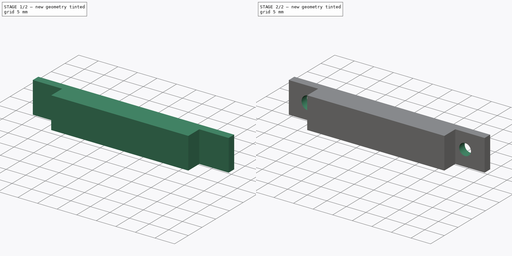
[diagram: build sequence overview — one tinted view per stage of 2, left to right]
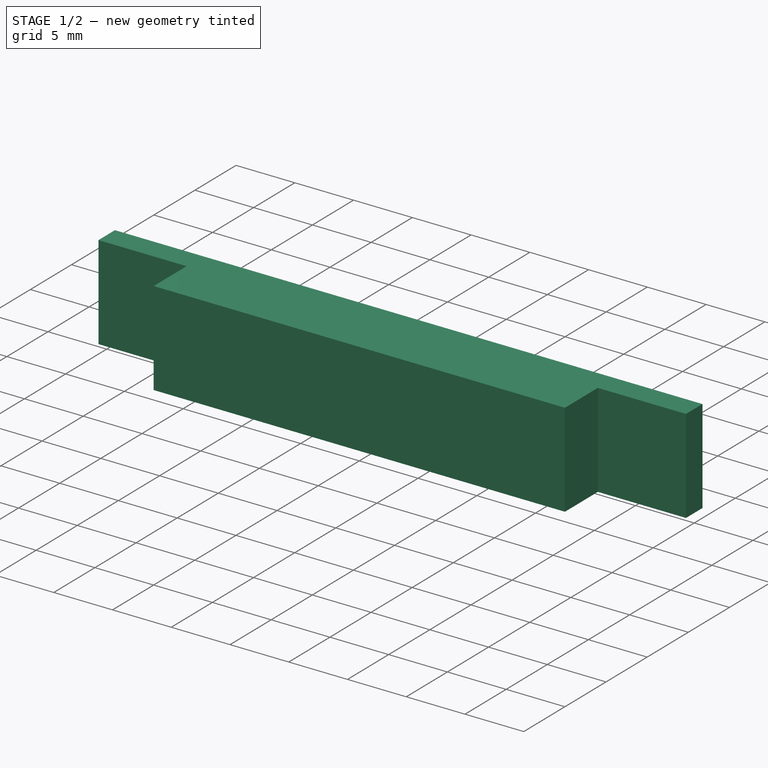
[diagram: stage 1 of 2 — iso view after this stage's code; geometry added in this stage tinted green]
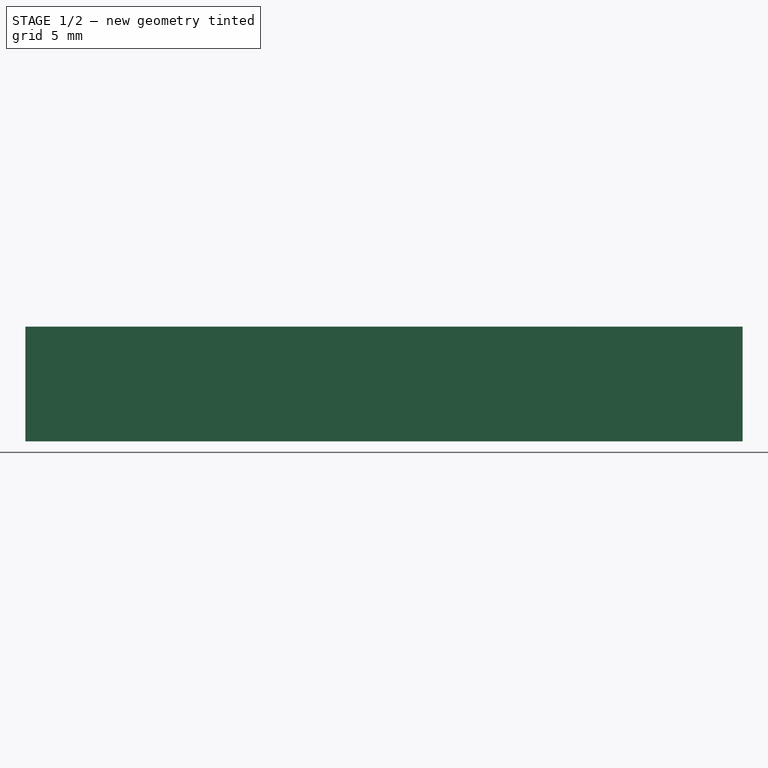
[diagram: stage 1 of 2 — front view after this stage's code; geometry added in this stage tinted green]
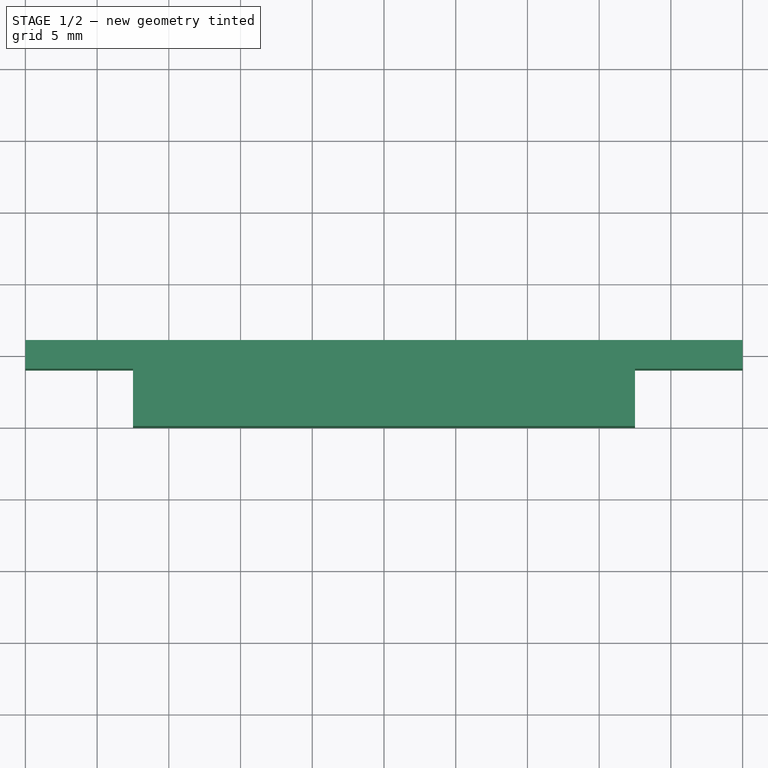
[diagram: stage 1 of 2 — top view after this stage's code; geometry added in this stage tinted green]
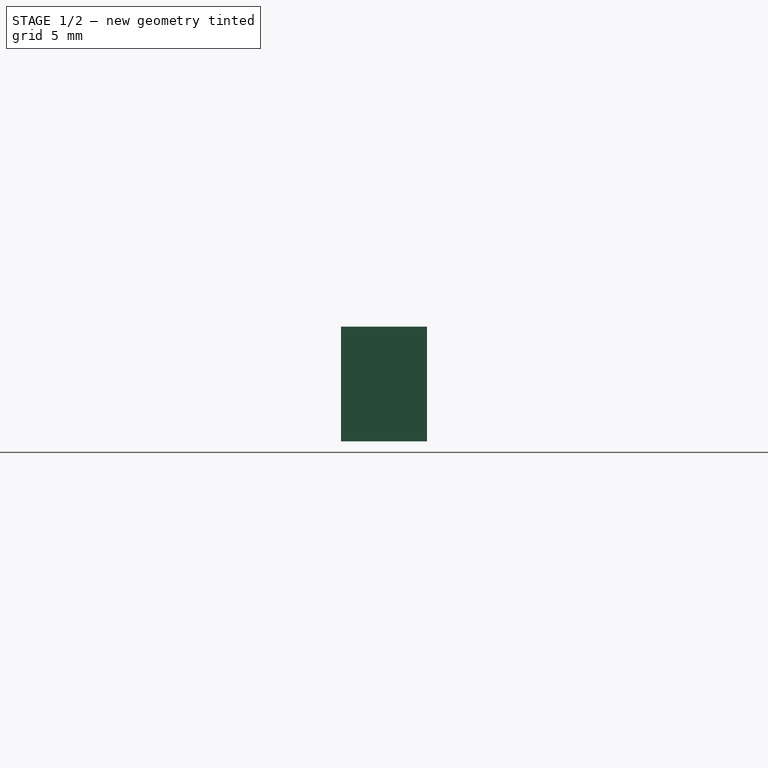
[diagram: stage 1 of 2 — right view after this stage's code; geometry added in this stage tinted green]
FCSTD DOCUMENT  (FreeCAD 2024.319R14555 (Git shallow))
Label: Holddown
License: All rights reserved
objects: Sketcher::SketchObject×2, PartDesign::Pad×1, PartDesign::Pocket×1, PartDesign::Body×1
note: 11 computed .brp shape members not serialized (recipe doc carries the construction recipe); baked Part::Feature solids carry a one-line shape summary decoded from their .brp

FEATURE [Sketcher::SketchObject] Sketch
  ArcFitTolerance = 1e-06
  AttachmentSupport = -> [XY_Plane]
  ExternalBSplineMaxDegree = 5
  ExternalBSplineTolerance = 0.0001
  FullyConstrained = true
  InternalTolerance = 1e-06
  InvalidShape = false
  MakeInternals = false
  MapMode = 5
  Support = -> [XY_Plane]
  TreeRank = 11
  ValidateShape = false
  sketch-geometry (8):
    g0: LineSegment StartX=-25 StartY=6 StartZ=0 EndX=25 EndY=6 EndZ=0
    g1: LineSegment StartX=25 StartY=6 StartZ=0 EndX=25 EndY=4 EndZ=0
    g2: LineSegment StartX=-25 StartY=4 StartZ=0 EndX=-25 EndY=6 EndZ=0
    g3: LineSegment StartX=-25 StartY=4 StartZ=0 EndX=-17.5 EndY=4 EndZ=0
    g4: LineSegment StartX=-17.5 StartY=4 StartZ=0 EndX=-17.5 EndY=0 EndZ=0
    g5: LineSegment StartX=-17.5 StartY=0 StartZ=0 EndX=17.5 EndY=0 EndZ=0
    g6: LineSegment StartX=17.5 StartY=0 StartZ=0 EndX=17.5 EndY=4 EndZ=0
    g7: LineSegment StartX=17.5 StartY=4 StartZ=0 EndX=25 EndY=4 EndZ=0
  constraints (23):
    c: Coincident(g0,g1)
    c: Coincident(g2,g0)
    c: Horizontal(g0)
    c: Vertical(g1)
    c: Vertical(g2)
    c: Coincident(g3,g2)
    c: Coincident(g4,g3)
    c: PointOnObject(g4,g-1)
    c: Vertical(g4)
    c: Coincident(g5,g4)
    c: Coincident(g6,g5)
    c: Vertical(g6)
    c: Coincident(g7,g6)
    c: Coincident(g7,g1)
    c: Horizontal(g7)
    c: DistanceX(g0,g0) = 50
    c: DistanceX(g5,g5) = 35
    c: Horizontal(g3)
    c: Horizontal(g3,g6)
    c: Symmetric(g4,g5,g-2)
    c: DistanceY(g1,g1) = 2
    c: Equal(g3,g7)
    c: DistanceY(g6,g6) = 4
FEATURE [PartDesign::Pad] Pad
  AddSubType = 0
  AlongSketchNormal = false
  AutoTaperInnerAngle = true
  CheckUpToFaceLimits = true
  ClaimChildren = false
  Direction = (0,0,1)
  Fit = 0
  FitJoin = 0
  InnerFit = 0
  InnerFitJoin = 0
  InvalidShape = false
  Length = 8
  Length2 = 10
  Linearize = true
  NewSolid = false
  Profile = -> Sketch
  ReferenceAxis = -> Sketch [N_Axis]
  Suppress = false
  TaperInnerAngle = 0
  TaperInnerAngleRev = 0
  TreeRank = 12
  Type = 0
  ValidateShape = false
  _ProfileBasedVersion = 1
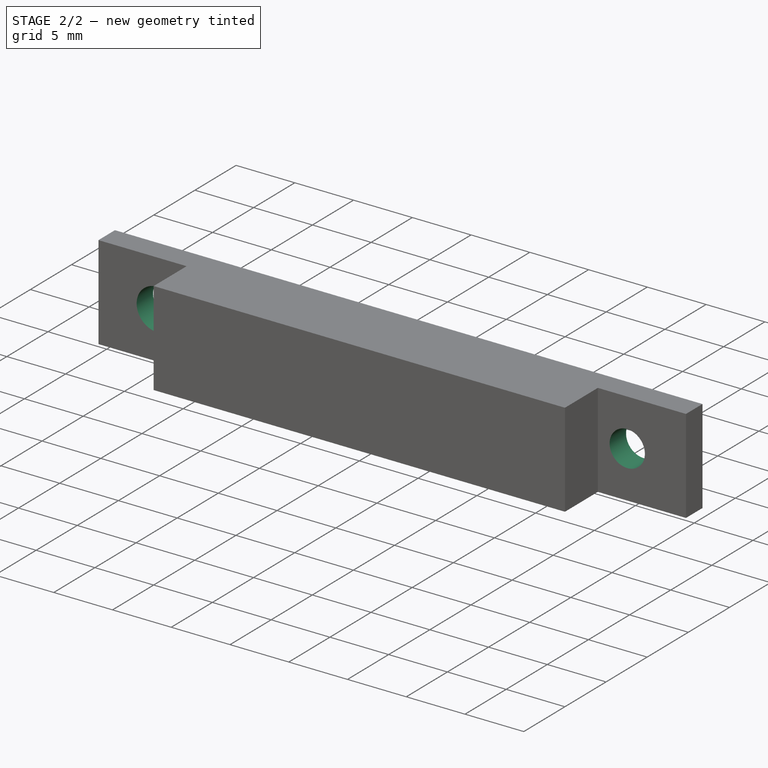
[diagram: stage 2 of 2 — iso view after this stage's code; geometry added in this stage tinted green]
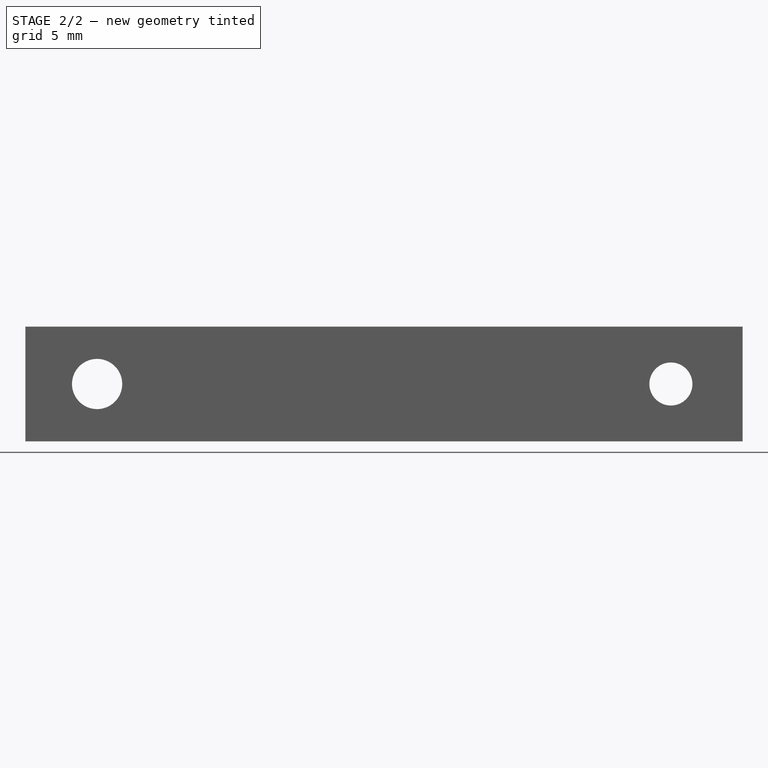
[diagram: stage 2 of 2 — front view after this stage's code; geometry added in this stage tinted green]
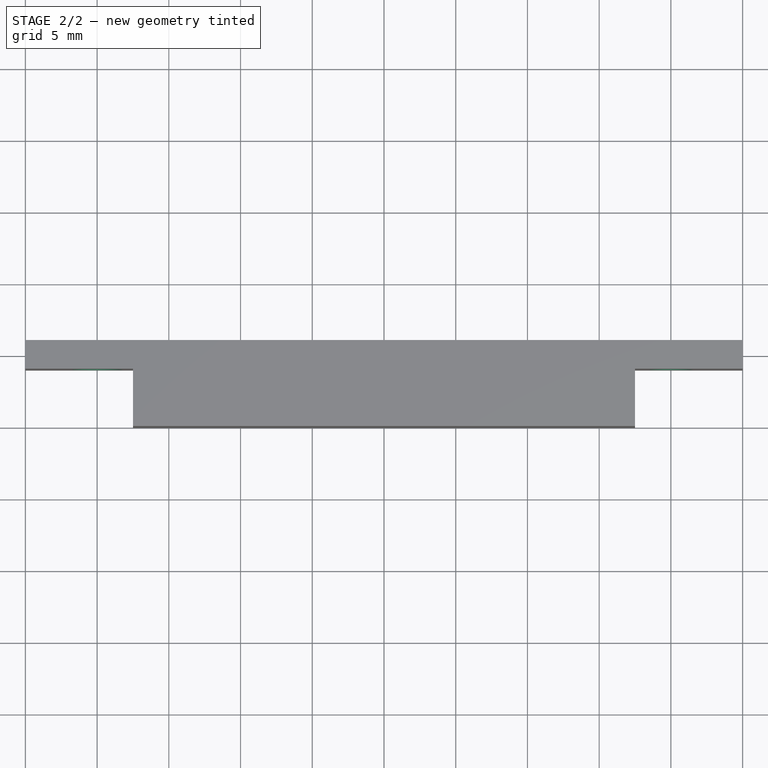
[diagram: stage 2 of 2 — top view after this stage's code; geometry added in this stage tinted green]
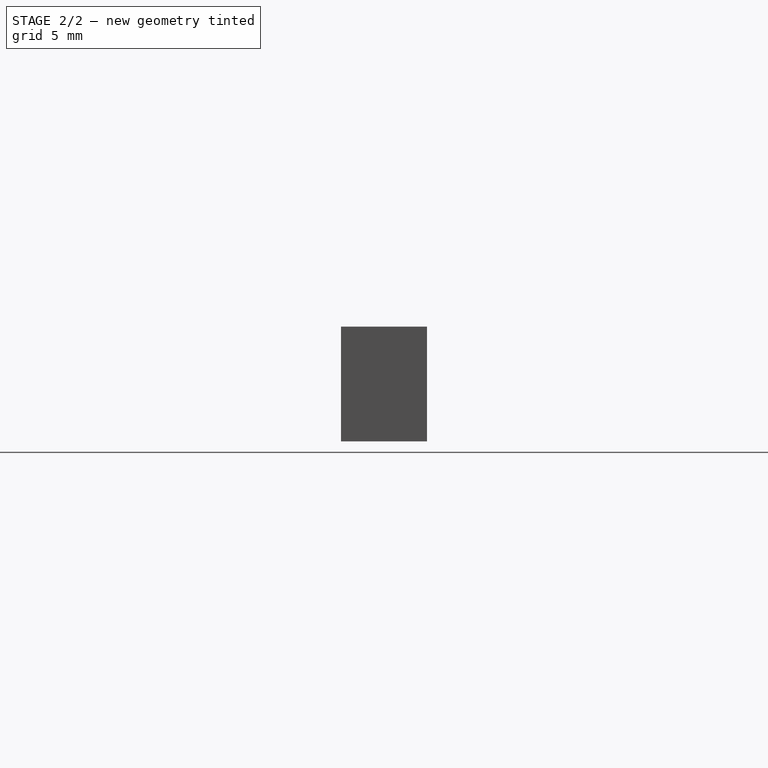
[diagram: stage 2 of 2 — right view after this stage's code; geometry added in this stage tinted green]
FEATURE [Sketcher::SketchObject] Sketch001
  ArcFitTolerance = 1e-06
  AttachmentSupport = -> [Pad]
  ExternalBSplineMaxDegree = 5
  ExternalBSplineTolerance = 0.0001
  FullyConstrained = true
  InternalTolerance = 1e-06
  InvalidShape = false
  MakeInternals = false
  MapMode = 5
  Placement = pos=(0,6,0) rot=(0,0.707107,0.707107;3.14159rad)
  Support = -> [Pad]
  TreeRank = 13
  ValidateShape = false
  expr: Constraints[2] = Pad.Length / 2
  sketch-geometry (2):
    g0: Circle CenterX=20 CenterY=4 CenterZ=0 NormalX=0 NormalY=0 NormalZ=1 AngleXU=0 Radius=1.75
    g1: Circle CenterX=-20 CenterY=4 CenterZ=0 NormalX=0 NormalY=0 NormalZ=1 AngleXU=0 Radius=1.5
  constraints (5):
    c: Diameter(g1) = 3
    c: Diameter(g0) = 3.5
    c: DistanceY(g0) = 4
    c: Symmetric(g1,g0,g-2)
    c: DistanceX(g1,g0) = 40
FEATURE [PartDesign::Pocket] Pocket
  AddSubType = 1
  AlongSketchNormal = false
  AutoTaperInnerAngle = true
  BaseFeature = -> Pad
  CheckUpToFaceLimits = true
  ClaimChildren = false
  Direction = (0,-1,2e-16)
  Fit = 0
  FitJoin = 0
  InnerFit = 0
  InnerFitJoin = 0
  InvalidShape = false
  Length = 5
  Length2 = 10
  Linearize = true
  NewSolid = false
  Profile = -> Sketch001
  ReferenceAxis = -> Sketch001 [N_Axis]
  Suppress = false
  TaperInnerAngle = 0
  TaperInnerAngleRev = 0
  TreeRank = 14
  Type = 0
  ValidateShape = false
  _ProfileBasedVersion = 1
  _Version = 1
FEATURE [PartDesign::Body] Body
  AutoGroupSolids = false
  ClaimAllChildren = false
  ExportMode = 0
  Group = -> [Sketch,Pad,Sketch001,Pocket]
  InvalidShape = false
  Origin = -> Origin
  Tip = -> Pocket
  TreeRank = 10
  ValidateShape = false
  _ExportChildren = -> [Pad,Pocket]
  _GroupVersion = 1
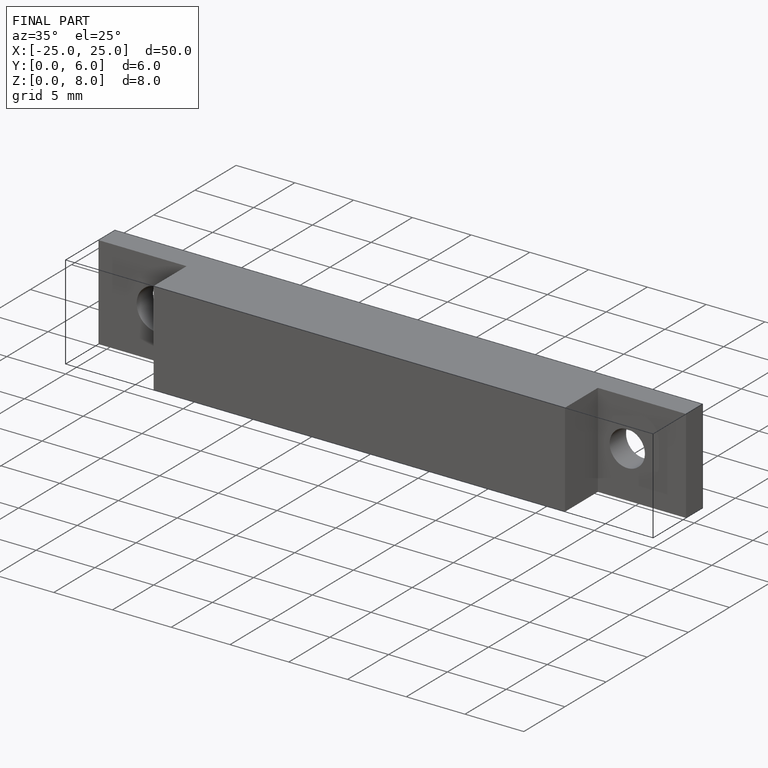
[diagram: finished part — iso view with bounding-box wireframe]
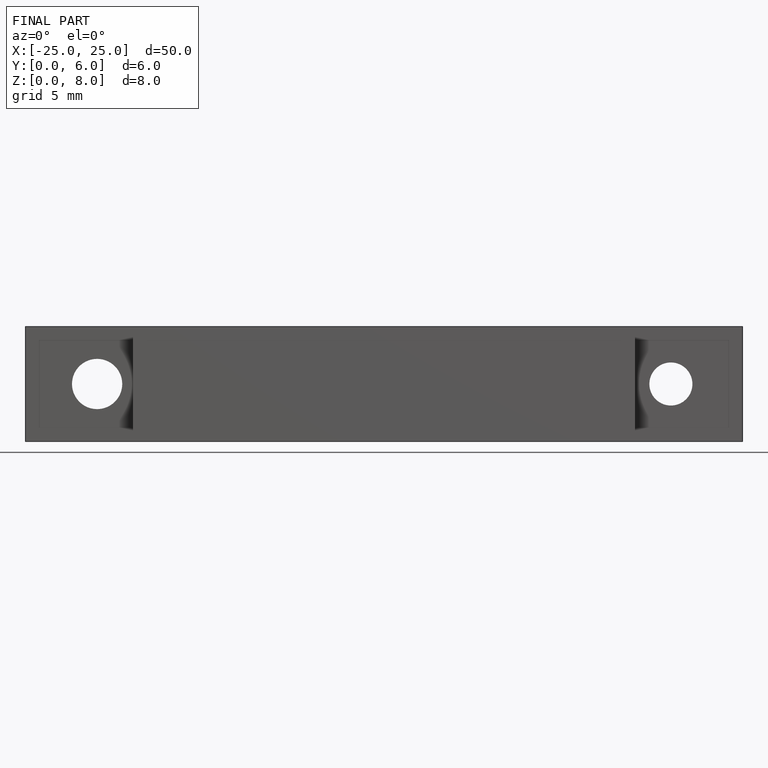
[diagram: finished part — front view with bounding-box wireframe]
